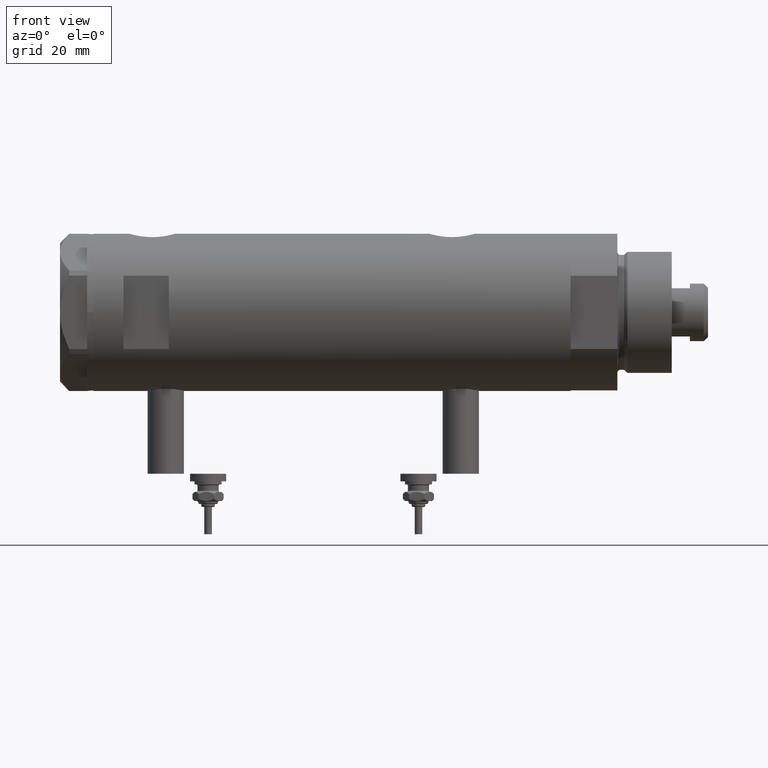
[diagram: clean part render]
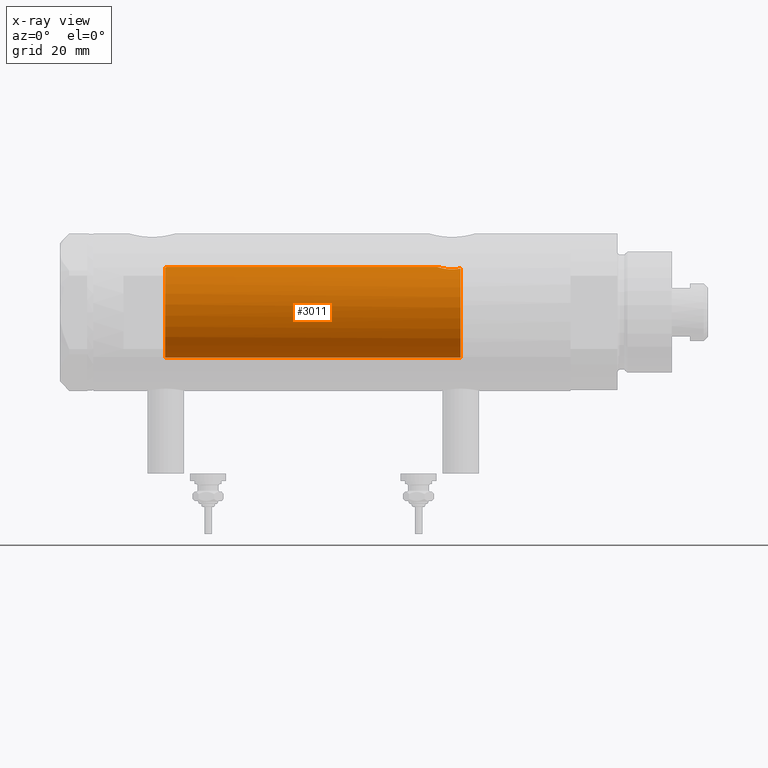
[diagram: x-ray — body ghosted, one internal face saturated and labeled with its STEP entity id]
A machine part, front view, then the same camera in x-ray: the body is ghosted and one INTERNAL B-rep face — a face not visible from any outside direction — is saturated and labeled: STEP entity #3011.
In plain terms, the highlighted cylindrical surface (partial cylindrical patch) has radius 15 mm, axis along (1, 0, -0).
Its self-contained STEP definition (entity closure, byte-faithful):
#172 = EDGE_CURVE ( 'NONE', #2383, #3635, #5284, .T. ) ;
#194 = CARTESIAN_POINT ( 'NONE',  ( 14.19797987272029438, -4.839174951492910104, -40.29741451501411120 ) ) ;
#212 = VECTOR ( 'NONE', #540, 1000.000000000000000 ) ;
#241 = CARTESIAN_POINT ( 'NONE',  ( 15.00000000000000000, 0.000000000000000000, 54.58500000000000085 ) ) ;
#274 = CARTESIAN_POINT ( 'NONE',  ( -15.00000000000000000, 0.000000000000000000, 55.15000000000000568 ) ) ;
#386 = CARTESIAN_POINT ( 'NONE',  ( 14.82638779339053947, -2.275571356824482638, 55.15000000000000568 ) ) ;
#416 = CIRCLE ( 'NONE', #3979, 15.00000000000000000 ) ;
#503 = ORIENTED_EDGE ( 'NONE', *, *, #2209, .T. ) ;
#540 = DIRECTION ( 'NONE',  ( -0.000000000000000000, -0.000000000000000000, -1.000000000000000000 ) ) ;
#648 = CARTESIAN_POINT ( 'NONE',  ( 14.42796883436190214, -4.108435602805831088, -37.10726922759031510 ) ) ;
#708 = CARTESIAN_POINT ( 'NONE',  ( 15.00000000000000000, 5.959273468635536151E-16, -34.88499999999999801 ) ) ;
#741 = B_SPLINE_CURVE_WITH_KNOTS ( 'NONE', 3,
 ( #241, #3657, #4668, #4539, #5612, #1248, #4643, #3182 ),
 .UNSPECIFIED., .F., .F.,
 ( 4, 2, 2, 4 ),
 ( 0.000000000000000000, 0.001182100180564266828, 0.001773150270846399808, 0.002364200361128533222 ),
 .UNSPECIFIED. ) ;
#778 = CARTESIAN_POINT ( 'NONE',  ( 14.19858338301463441, -4.837406781463696070, -39.18614104090498529 ) ) ;
#798 = B_SPLINE_CURVE_WITH_KNOTS ( 'NONE', 3,
 ( #2699, #3580, #1132, #2632, #4533, #5543, #3171, #5083, #194, #4558, #3622, #778, #6114, #4171, #5575, #2131, #5028, #648, #5061, #4597, #1760, #5123, #3546, #3684, #3141, #5506, #3111, #5639, #6089, #708 ),
 .UNSPECIFIED., .F., .F.,
 ( 4, 2, 2, 2, 2, 2, 2, 2, 2, 2, 2, 2, 2, 2, 4 ),
 ( 0.004672505804584289359, 0.005337629501999303222, 0.006002753199414317953, 0.006667876896829330949, 0.007333000594244345680, 0.007998124291659358676, 0.008663247989074373406, 0.009328371686489388137, 0.009993495383904402868, 0.01132374277873441151, 0.01265399017356442016, 0.01331911387097942448, 0.01398423756839442880, 0.01464936126580943312, 0.01531448496322443745 ),
 .UNSPECIFIED. ) ;
#871 = ORIENTED_EDGE ( 'NONE', *, *, #2246, .T. ) ;
#885 = DIRECTION ( 'NONE',  ( 0.000000000000000000, 0.000000000000000000, -1.000000000000000000 ) ) ;
#1004 = DIRECTION ( 'NONE',  ( -1.000000000000000000, 0.000000000000000000, 0.000000000000000000 ) ) ;
#1104 = EDGE_CURVE ( 'NONE', #2146, #3635, #5619, .T. ) ;
#1132 = CARTESIAN_POINT ( 'NONE',  ( 14.39424372609267877, -4.221002267729138779, -42.17893131093288872 ) ) ;
#1248 = CARTESIAN_POINT ( 'NONE',  ( 14.87720562886504183, -1.924385875533401347, 54.97741675737692191 ) ) ;
#1312 = CARTESIAN_POINT ( 'NONE',  ( 0.000000000000000000, 0.000000000000000000, -42.55000000000000426 ) ) ;
#1411 = DIRECTION ( 'NONE',  ( -0.000000000000000000, -0.000000000000000000, -1.000000000000000000 ) ) ;
#1524 = CARTESIAN_POINT ( 'NONE',  ( 15.00000000000000000, 1.836970198721029589E-15, 78.95000000000000284 ) ) ;
#1641 = EDGE_CURVE ( 'NONE', #2831, #5368, #741, .T. ) ;
#1719 = ORIENTED_EDGE ( 'NONE', *, *, #1104, .T. ) ;
#1760 = CARTESIAN_POINT ( 'NONE',  ( 14.72015646623405871, -2.909233045280601893, -35.82572079632733164 ) ) ;
#1836 = DIRECTION ( 'NONE',  ( -1.000000000000000000, 0.000000000000000000, 0.000000000000000000 ) ) ;
#1878 = EDGE_CURVE ( 'NONE', #2146, #4310, #798, .T. ) ;
#2131 = CARTESIAN_POINT ( 'NONE',  ( 14.30772250772359833, -4.505024017690383076, -37.90010806953218037 ) ) ;
#2146 = VERTEX_POINT ( 'NONE', #3030 ) ;
#2209 = EDGE_CURVE ( 'NONE', #2831, #4310, #3921, .T. ) ;
#2246 = EDGE_CURVE ( 'NONE', #2383, #5368, #416, .T. ) ;
#2383 = VERTEX_POINT ( 'NONE', #274 ) ;
#2411 = ORIENTED_EDGE ( 'NONE', *, *, #1878, .F. ) ;
#2614 = DIRECTION ( 'NONE',  ( 1.000000000000000000, 0.000000000000000000, 0.000000000000000000 ) ) ;
#2632 = CARTESIAN_POINT ( 'NONE',  ( 14.33349657381506681, -4.422893686125041413, -41.78827841538883092 ) ) ;
#2699 = CARTESIAN_POINT ( 'NONE',  ( 14.46277203719950855, -3.978470183374506863, -42.55000000000000426 ) ) ;
#2831 = VERTEX_POINT ( 'NONE', #4120 ) ;
#2858 = AXIS2_PLACEMENT_3D ( 'NONE', #1312, #885, #1836 ) ;
#3011 = ADVANCED_FACE ( 'NONE', ( #3722 ), #3233, .F. ) ;
#3030 = CARTESIAN_POINT ( 'NONE',  ( 14.46277203719950855, -3.978470183374506863, -42.55000000000000426 ) ) ;
#3111 = CARTESIAN_POINT ( 'NONE',  ( 14.97537530859971966, -0.8874117095427771496, -34.96137464055828303 ) ) ;
#3141 = CARTESIAN_POINT ( 'NONE',  ( 14.92307637240703677, -1.532123959568890026, -35.12726557582075770 ) ) ;
#3143 = EDGE_LOOP ( 'NONE', ( #6130, #503, #2411, #1719, #3609, #871 ) ) ;
#3171 = CARTESIAN_POINT ( 'NONE',  ( 14.23846660849503465, -4.718934182878722794, -40.95401121469808459 ) ) ;
#3182 = CARTESIAN_POINT ( 'NONE',  ( 14.82638779339053947, -2.275571356824482638, 55.15000000000000568 ) ) ;
#3233 = CYLINDRICAL_SURFACE ( 'NONE', #6150, 15.00000000000000000 ) ;
#3546 = CARTESIAN_POINT ( 'NONE',  ( 14.84733308118440220, -2.144376633039216440, -35.37751912952715827 ) ) ;
#3580 = CARTESIAN_POINT ( 'NONE',  ( 14.42775250319760083, -4.105775281508734054, -42.36911445102907692 ) ) ;
#3609 = ORIENTED_EDGE ( 'NONE', *, *, #172, .F. ) ;
#3622 = CARTESIAN_POINT ( 'NONE',  ( 14.18786347641749757, -4.868757996482117711, -39.63322300400292875 ) ) ;
#3635 = VERTEX_POINT ( 'NONE', #6167 ) ;
#3657 = CARTESIAN_POINT ( 'NONE',  ( 15.00000000000000178, -0.3999014018875943210, 54.58500000000000796 ) ) ;
#3684 = CARTESIAN_POINT ( 'NONE',  ( 14.90017778876744892, -1.739641523727902372, -35.20130925695126223 ) ) ;
#3722 = FACE_OUTER_BOUND ( 'NONE', #3143, .T. ) ;
#3921 = LINE ( 'NONE', #1524, #212 ) ;
#3979 = AXIS2_PLACEMENT_3D ( 'NONE', #4183, #4099, #2614 ) ;
#4099 = DIRECTION ( 'NONE',  ( 0.000000000000000000, 0.000000000000000000, 1.000000000000000000 ) ) ;
#4120 = CARTESIAN_POINT ( 'NONE',  ( 15.00000000000000000, 0.000000000000000000, 54.58500000000000085 ) ) ;
#4171 = CARTESIAN_POINT ( 'NONE',  ( 14.23984499268011028, -4.714778477509579346, -38.53008258614764969 ) ) ;
#4183 = CARTESIAN_POINT ( 'NONE',  ( 0.000000000000000000, 0.000000000000000000, 55.15000000000000568 ) ) ;
#4310 = VERTEX_POINT ( 'NONE', #4670 ) ;
#4533 = CARTESIAN_POINT ( 'NONE',  ( 14.30602371879161439, -4.510400617436904014, -41.58665028800272268 ) ) ;
#4539 = CARTESIAN_POINT ( 'NONE',  ( 14.93900636919599911, -1.364886281976677607, 54.77622504971313333 ) ) ;
#4558 = CARTESIAN_POINT ( 'NONE',  ( 14.18781489734108270, -4.868896704194245473, -39.85545969036063241 ) ) ;
#4597 = CARTESIAN_POINT ( 'NONE',  ( 14.64727859494137263, -3.248701865452407578, -36.10174013696653361 ) ) ;
#4643 = CARTESIAN_POINT ( 'NONE',  ( 14.85289483991917514, -2.102865829523695940, 55.05860377881607093 ) ) ;
#4668 = CARTESIAN_POINT ( 'NONE',  ( 14.98404828787190723, -0.7909490205761879889, 54.63356230794191504 ) ) ;
#4670 = CARTESIAN_POINT ( 'NONE',  ( 15.00000000000000000, 5.959273468635536151E-16, -34.88499999999999801 ) ) ;
#4697 = DIRECTION ( 'NONE',  ( -0.000000000000000000, -0.000000000000000000, -1.000000000000000000 ) ) ;
#4877 = VECTOR ( 'NONE', #1411, 1000.000000000000000 ) ;
#5028 = CARTESIAN_POINT ( 'NONE',  ( 14.33594561531104006, -4.414979644548145288, -37.69453393419243525 ) ) ;
#5061 = CARTESIAN_POINT ( 'NONE',  ( 14.49994286062941562, -3.853373987417223479, -36.74743896782912600 ) ) ;
#5083 = CARTESIAN_POINT ( 'NONE',  ( 14.20819413761015504, -4.809312895991456394, -40.51713251522166814 ) ) ;
#5123 = CARTESIAN_POINT ( 'NONE',  ( 14.81710879718117546, -2.343063746046468054, -35.48067662538952050 ) ) ;
#5185 = CARTESIAN_POINT ( 'NONE',  ( 0.000000000000000000, 0.000000000000000000, 78.95000000000000284 ) ) ;
#5284 = LINE ( 'NONE', #5769, #4877 ) ;
#5368 = VERTEX_POINT ( 'NONE', #386 ) ;
#5506 = CARTESIAN_POINT ( 'NONE',  ( 14.96064712090283777, -1.106639041422191827, -35.00738179736369915 ) ) ;
#5543 = CARTESIAN_POINT ( 'NONE',  ( 14.25856516724843992, -4.658255869285516937, -41.17044016644936733 ) ) ;
#5575 = CARTESIAN_POINT ( 'NONE',  ( 14.25977760983849052, -4.654557688538888627, -38.31736805897653397 ) ) ;
#5612 = CARTESIAN_POINT ( 'NONE',  ( 14.92029983160078288, -1.555365312915176768, 54.83609703141411984 ) ) ;
#5619 = CIRCLE ( 'NONE', #2858, 15.00000000000000000 ) ;
#5639 = CARTESIAN_POINT ( 'NONE',  ( 14.99508877558421993, -0.4434836953032583184, -34.90007684727662252 ) ) ;
#5769 = CARTESIAN_POINT ( 'NONE',  ( -15.00000000000000000, 0.000000000000000000, 78.95000000000000284 ) ) ;
#6089 = CARTESIAN_POINT ( 'NONE',  ( 15.00000000000000000, -0.2216692655473431750, -34.88499999999999091 ) ) ;
#6114 = CARTESIAN_POINT ( 'NONE',  ( 14.20926245015526135, -4.806160851464706063, -38.96377327795616452 ) ) ;
#6130 = ORIENTED_EDGE ( 'NONE', *, *, #1641, .F. ) ;
#6150 = AXIS2_PLACEMENT_3D ( 'NONE', #5185, #4697, #1004 ) ;
#6167 = CARTESIAN_POINT ( 'NONE',  ( -15.00000000000000000, 0.000000000000000000, -42.55000000000000426 ) ) ;